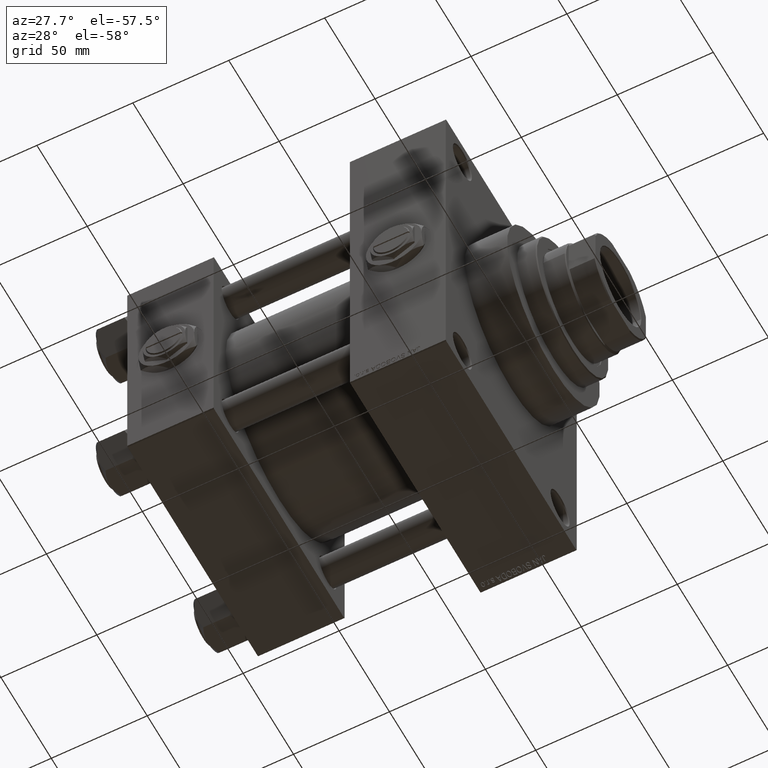
[diagram: clean part render]
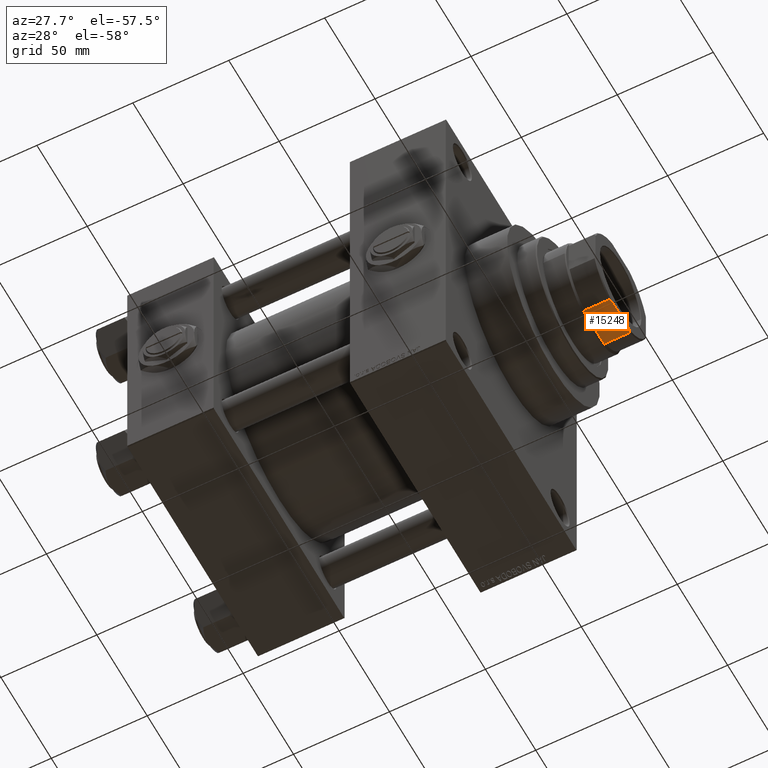
[diagram: same view with one face highlighted and labeled with its STEP entity id]
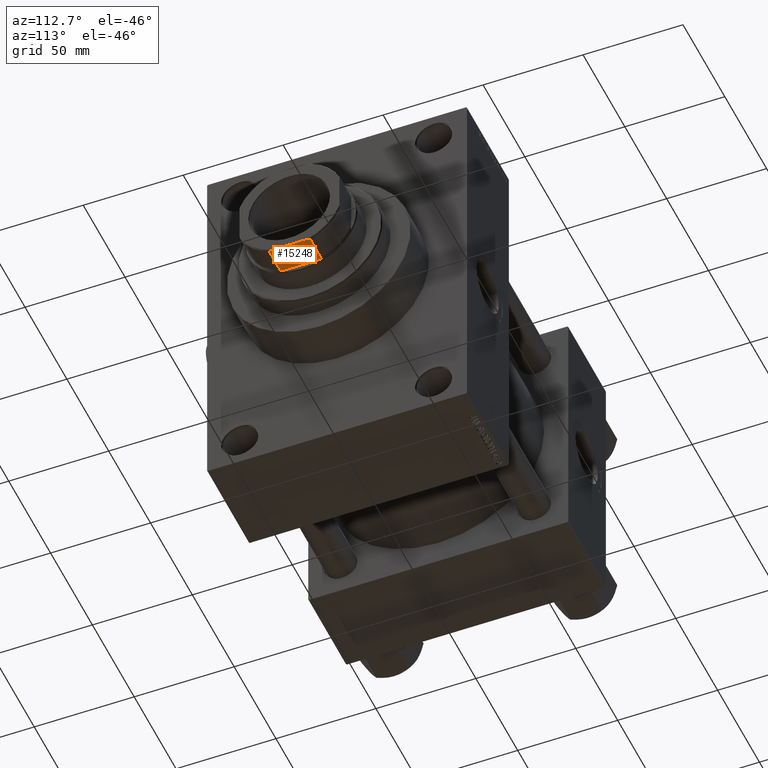
[diagram: same view with one face highlighted and labeled with its STEP entity id]
A machine part, auxiliary view. The second image highlights one B-rep face of the part: STEP entity #15248.
A second angle (auxiliary view) of the same face is appended — the face is thin or edge-on in the first view.
In plain terms, the highlighted planar face has unit normal (0, -0, 1).
Its self-contained STEP definition (entity closure, byte-faithful):
#519 = EDGE_CURVE ( 'NONE', #26835, #46866, #5250, .T. ) ;
#1688 = FACE_OUTER_BOUND ( 'NONE', #47955, .T. ) ;
#2189 = PLANE ( 'NONE',  #21172 ) ;
#2243 = CARTESIAN_POINT ( 'NONE',  ( -8.789197915623342183, 25.00000000000000000, 178.0000000000000284 ) ) ;
#2462 = CARTESIAN_POINT ( 'NONE',  ( 10.19803902718555833, 25.00000000000000355, 164.5000000000000000 ) ) ;
#4358 = CARTESIAN_POINT ( 'NONE',  ( -10.19803902718555300, 25.00000000000000000, 164.5000000000000000 ) ) ;
#5250 = B_SPLINE_CURVE_WITH_KNOTS ( 'NONE', 3,
 ( #15708, #31071, #46458, #4358 ),
 .UNSPECIFIED., .F., .F.,
 ( 4, 4 ),
 ( 0.1613657269701884445, 0.1626835971102010281 ),
 .UNSPECIFIED. ) ;
#5836 = EDGE_CURVE ( 'NONE', #29629, #8780, #9765, .T. ) ;
#5978 = CARTESIAN_POINT ( 'NONE',  ( -9.731776668925970597, 25.00000000000000000, 177.6761096935718172 ) ) ;
#6845 = EDGE_CURVE ( 'NONE', #8780, #26835, #16158, .T. ) ;
#7014 = DIRECTION ( 'NONE',  ( -1.000000000000000000, -0.000000000000000000, -0.000000000000000000 ) ) ;
#7168 = B_SPLINE_CURVE_WITH_KNOTS ( 'NONE', 3,
 ( #29311, #44698, #40912, #29559 ),
 .UNSPECIFIED., .F., .F.,
 ( 4, 4 ),
 ( 1.734723475976806902E-18, 0.001494935877429957654 ),
 .UNSPECIFIED. ) ;
#7747 = VECTOR ( 'NONE', #26712, 1000.000000000000000 ) ;
#8705 = CARTESIAN_POINT ( 'NONE',  ( 10.19803902718555655, 24.99999999999999645, 177.5000000000000284 ) ) ;
#8751 = EDGE_CURVE ( 'NONE', #10466, #14528, #7168, .T. ) ;
#8780 = VERTEX_POINT ( 'NONE', #39916 ) ;
#9765 = B_SPLINE_CURVE_WITH_KNOTS ( 'NONE', 3,
 ( #22636, #29282, #14178, #37088 ),
 .UNSPECIFIED., .F., .F.,
 ( 4, 4 ),
 ( 0.1347300791724978242, 0.1360693631961248928 ),
 .UNSPECIFIED. ) ;
#10402 = VERTEX_POINT ( 'NONE', #2243 ) ;
#10466 = VERTEX_POINT ( 'NONE', #30434 ) ;
#10541 = VECTOR ( 'NONE', #17155, 1000.000000000000000 ) ;
#12421 = LINE ( 'NONE', #39876, #19852 ) ;
#12873 = CARTESIAN_POINT ( 'NONE',  ( -25.00000000000000000, 25.00000000000000000, 164.0000000000000000 ) ) ;
#13789 = DIRECTION ( 'NONE',  ( 0.000000000000000000, -0.000000000000000000, -1.000000000000000000 ) ) ;
#14178 = CARTESIAN_POINT ( 'NONE',  ( 11.03923433039705593, 25.00000000000000000, 164.1738066424182136 ) ) ;
#14528 = VERTEX_POINT ( 'NONE', #8705 ) ;
#15248 = ADVANCED_FACE ( 'NONE', ( #1688 ), #2189, .F. ) ;
#15708 = CARTESIAN_POINT ( 'NONE',  ( -11.45643923738959025, 25.00000000000000000, 164.0000000000000000 ) ) ;
#16158 = LINE ( 'NONE', #12873, #10541 ) ;
#17155 = DIRECTION ( 'NONE',  ( -1.000000000000000000, -0.000000000000000000, -0.000000000000000000 ) ) ;
#17565 = CARTESIAN_POINT ( 'NONE',  ( -25.00000000000000000, 25.00000000000000000, 178.0000000000000284 ) ) ;
#19852 = VECTOR ( 'NONE', #20703, 1000.000000000000000 ) ;
#20703 = DIRECTION ( 'NONE',  ( -0.000000000000000000, -0.000000000000000000, 1.000000000000000000 ) ) ;
#21141 = ORIENTED_EDGE ( 'NONE', *, *, #38132, .F. ) ;
#21172 = AXIS2_PLACEMENT_3D ( 'NONE', #17565, #32932, #13789 ) ;
#22173 = ORIENTED_EDGE ( 'NONE', *, *, #519, .T. ) ;
#22636 = CARTESIAN_POINT ( 'NONE',  ( 10.19803902718555833, 25.00000000000000355, 164.5000000000000000 ) ) ;
#23004 = CARTESIAN_POINT ( 'NONE',  ( -10.19803902718555655, 25.00000000000000000, 177.5000000000000000 ) ) ;
#23032 = CARTESIAN_POINT ( 'NONE',  ( -10.19803902718555300, 25.00000000000000000, 164.5000000000000000 ) ) ;
#24123 = ORIENTED_EDGE ( 'NONE', *, *, #6845, .T. ) ;
#26712 = DIRECTION ( 'NONE',  ( -0.000000000000000000, -0.000000000000000000, 1.000000000000000000 ) ) ;
#26835 = VERTEX_POINT ( 'NONE', #49166 ) ;
#26884 = ORIENTED_EDGE ( 'NONE', *, *, #34960, .F. ) ;
#28631 = ORIENTED_EDGE ( 'NONE', *, *, #31729, .T. ) ;
#29282 = CARTESIAN_POINT ( 'NONE',  ( 10.61983482933081646, 25.00000000000000000, 164.3406855536377691 ) ) ;
#29311 = CARTESIAN_POINT ( 'NONE',  ( 8.789197915623548241, 25.00000000000000000, 178.0000000000000284 ) ) ;
#29559 = CARTESIAN_POINT ( 'NONE',  ( 10.19803902718555655, 24.99999999999999645, 177.5000000000000284 ) ) ;
#29629 = VERTEX_POINT ( 'NONE', #2462 ) ;
#29917 = ORIENTED_EDGE ( 'NONE', *, *, #5836, .T. ) ;
#30434 = CARTESIAN_POINT ( 'NONE',  ( 8.789197915623548241, 25.00000000000000000, 178.0000000000000284 ) ) ;
#31071 = CARTESIAN_POINT ( 'NONE',  ( -11.03952915007668345, 25.00000000000000000, 164.1736838211911049 ) ) ;
#31729 = EDGE_CURVE ( 'NONE', #43907, #10402, #43091, .T. ) ;
#32615 = ORIENTED_EDGE ( 'NONE', *, *, #35822, .T. ) ;
#32932 = DIRECTION ( 'NONE',  ( 0.000000000000000000, -1.000000000000000000, 0.000000000000000000 ) ) ;
#33522 = VECTOR ( 'NONE', #7014, 1000.000000000000000 ) ;
#34031 = LINE ( 'NONE', #49433, #7747 ) ;
#34960 = EDGE_CURVE ( 'NONE', #29629, #14528, #34031, .T. ) ;
#35245 = ORIENTED_EDGE ( 'NONE', *, *, #8751, .T. ) ;
#35822 = EDGE_CURVE ( 'NONE', #46866, #43907, #12421, .T. ) ;
#37088 = CARTESIAN_POINT ( 'NONE',  ( 11.45643923738958492, 25.00000000000000000, 164.0000000000000000 ) ) ;
#38132 = EDGE_CURVE ( 'NONE', #10466, #10402, #45326, .T. ) ;
#38142 = CARTESIAN_POINT ( 'NONE',  ( -9.262276112429329800, 25.00000000000000000, 177.8430951735361134 ) ) ;
#39876 = CARTESIAN_POINT ( 'NONE',  ( -10.19803902718555655, 25.00000000000000000, -0.001000000000001000089 ) ) ;
#39916 = CARTESIAN_POINT ( 'NONE',  ( 11.45643923738958492, 25.00000000000000000, 164.0000000000000000 ) ) ;
#40826 = CARTESIAN_POINT ( 'NONE',  ( -10.19803902718555655, 25.00000000000000000, 177.5000000000000000 ) ) ;
#40912 = CARTESIAN_POINT ( 'NONE',  ( 9.731776668926048757, 25.00000000000000000, 177.6761096935718172 ) ) ;
#41535 = CARTESIAN_POINT ( 'NONE',  ( -25.00000000000000000, 25.00000000000000000, 178.0000000000000284 ) ) ;
#43091 = B_SPLINE_CURVE_WITH_KNOTS ( 'NONE', 3,
 ( #23004, #5978, #38142, #48321 ),
 .UNSPECIFIED., .F., .F.,
 ( 4, 4 ),
 ( 0.000000000000000000, 0.001494935877430161484 ),
 .UNSPECIFIED. ) ;
#43907 = VERTEX_POINT ( 'NONE', #40826 ) ;
#44698 = CARTESIAN_POINT ( 'NONE',  ( 9.262276112429466579, 25.00000000000000000, 177.8430951735361134 ) ) ;
#45326 = LINE ( 'NONE', #41535, #33522 ) ;
#46458 = CARTESIAN_POINT ( 'NONE',  ( -10.62014219435931039, 25.00000000000000000, 164.3405694602838025 ) ) ;
#46866 = VERTEX_POINT ( 'NONE', #23032 ) ;
#47955 = EDGE_LOOP ( 'NONE', ( #21141, #35245, #26884, #29917, #24123, #22173, #32615, #28631 ) ) ;
#48321 = CARTESIAN_POINT ( 'NONE',  ( -8.789197915623342183, 25.00000000000000000, 178.0000000000000284 ) ) ;
#49166 = CARTESIAN_POINT ( 'NONE',  ( -11.45643923738959025, 25.00000000000000000, 164.0000000000000000 ) ) ;
#49433 = CARTESIAN_POINT ( 'NONE',  ( 10.19803902718555655, 24.99999999999999645, -0.001000000000001000089 ) ) ;